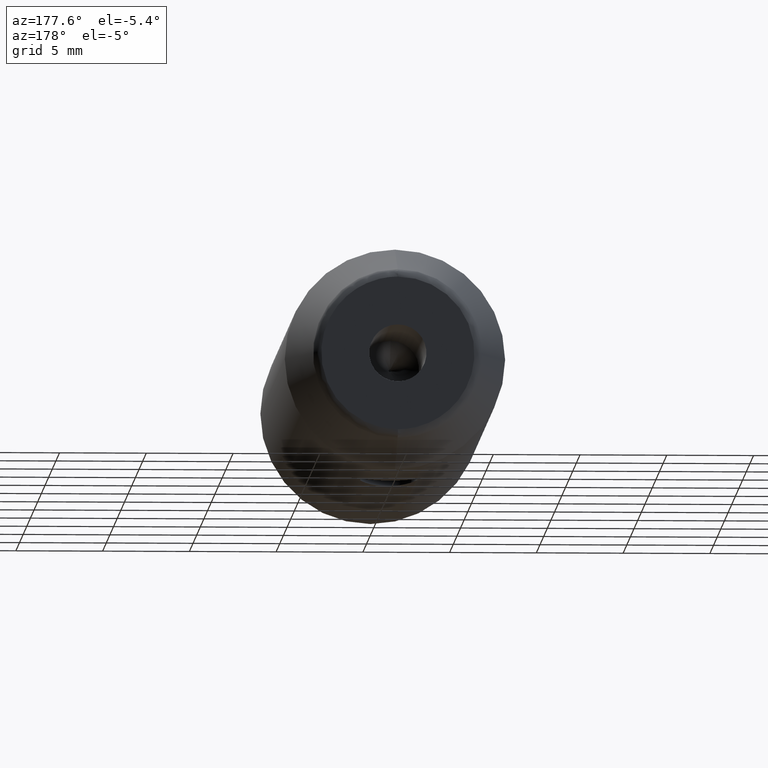
[diagram: clean part render]
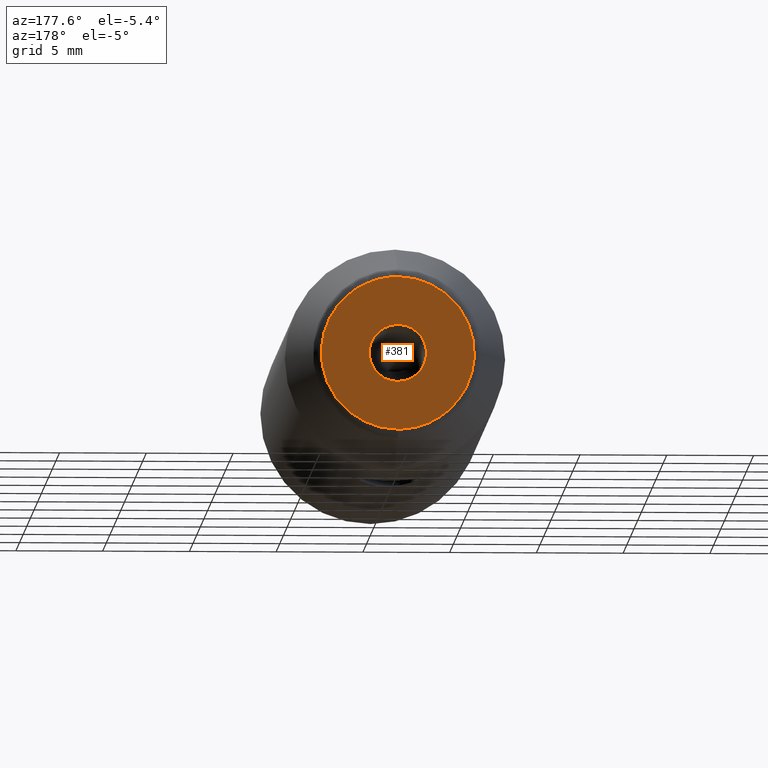
[diagram: same view with one face highlighted and labeled with its STEP entity id]
A machine part, auxiliary view. The second image highlights one B-rep face of the part: STEP entity #381.
In plain terms, the highlighted planar face has unit normal (0, 1, 0).
Its self-contained STEP definition (entity closure, byte-faithful):
#29 = CARTESIAN_POINT ( 'NONE',  ( 2.020667218593131000E-016, 38.10000000000000100, -1.649999999999998600 ) ) ;
#40 = VERTEX_POINT ( 'NONE', #219 ) ;
#42 = DIRECTION ( 'NONE',  ( 0.0000000000000000000, 1.000000000000000000, 0.0000000000000000000 ) ) ;
#53 = EDGE_LOOP ( 'NONE', ( #194, #459 ) ) ;
#77 = EDGE_CURVE ( 'NONE', #780, #167, #170, .T. ) ;
#79 = CIRCLE ( 'NONE', #206, 1.649999999999998600 ) ;
#112 = FACE_BOUND ( 'NONE', #688, .T. ) ;
#148 = ORIENTED_EDGE ( 'NONE', *, *, #636, .T. ) ;
#152 = DIRECTION ( 'NONE',  ( 0.0000000000000000000, 0.0000000000000000000, 1.000000000000000000 ) ) ;
#157 = CARTESIAN_POINT ( 'NONE',  ( -8.822967038573169800, 38.09999999999999400, -4.411483519286585800 ) ) ;
#164 = CARTESIAN_POINT ( 'NONE',  ( 0.0000000000000000000, 38.10000000000000100, 0.0000000000000000000 ) ) ;
#166 = ORIENTED_EDGE ( 'NONE', *, *, #77, .T. ) ;
#167 = VERTEX_POINT ( 'NONE', #515 ) ;
#170 = CIRCLE ( 'NONE', #286, 1.649999999999998600 ) ;
#194 = ORIENTED_EDGE ( 'NONE', *, *, #359, .F. ) ;
#206 = AXIS2_PLACEMENT_3D ( 'NONE', #271, #415, #758 ) ;
#213 = VERTEX_POINT ( 'NONE', #806 ) ;
#217 = CARTESIAN_POINT ( 'NONE',  ( -8.822967038573169800, 38.09999999999999400, 4.411483519286585800 ) ) ;
#219 = CARTESIAN_POINT ( 'NONE',  ( 0.0000000000000000000, 38.10000000000000100, 4.411483519286585800 ) ) ;
#271 = CARTESIAN_POINT ( 'NONE',  ( 0.0000000000000000000, 38.10000000000000100, 0.0000000000000000000 ) ) ;
#282 = CARTESIAN_POINT ( 'NONE',  ( 5.402509171385618700E-016, 38.10000000000000100, -4.411483519286585800 ) ) ;
#286 = AXIS2_PLACEMENT_3D ( 'NONE', #643, #699, #152 ) ;
#290 = DIRECTION ( 'NONE',  ( 0.0000000000000000000, -0.0000000000000000000, 1.000000000000000000 ) ) ;
#327 = EDGE_CURVE ( 'NONE', #213, #40, #652, .T. ) ;
#359 = EDGE_CURVE ( 'NONE', #40, #213, #494, .T. ) ;
#381 = ADVANCED_FACE ( 'NONE', ( #112, #490 ), #481, .T. ) ;
#415 = DIRECTION ( 'NONE',  ( -0.0000000000000000000, -1.000000000000000000, -0.0000000000000000000 ) ) ;
#459 = ORIENTED_EDGE ( 'NONE', *, *, #327, .F. ) ;
#467 = CARTESIAN_POINT ( 'NONE',  ( 0.0000000000000000000, 38.10000000000000100, 4.411483519286585800 ) ) ;
#481 = PLANE ( 'NONE',  #569 ) ;
#490 = FACE_OUTER_BOUND ( 'NONE', #53, .T. ) ;
#494 =( BOUNDED_CURVE ( )  B_SPLINE_CURVE ( 3, ( #467, #217, #157, #282 ),
 .UNSPECIFIED., .F., .F. ) 
 B_SPLINE_CURVE_WITH_KNOTS ( ( 4, 4 ),
 ( 0.0000000000000000000, 0.5000000000000000000 ),
 .UNSPECIFIED. ) 
 CURVE ( )  GEOMETRIC_REPRESENTATION_ITEM ( )  RATIONAL_B_SPLINE_CURVE ( ( 1.000000000000000000, 0.3333333333333333700, 0.3333333333333333700, 1.000000000000000000 ) ) 
 REPRESENTATION_ITEM ( '' )  );
#515 = CARTESIAN_POINT ( 'NONE',  ( 0.0000000000000000000, 38.10000000000000100, 1.649999999999998600 ) ) ;
#542 = CARTESIAN_POINT ( 'NONE',  ( 8.822967038573169800, 38.09999999999999400, -4.411483519286584900 ) ) ;
#569 = AXIS2_PLACEMENT_3D ( 'NONE', #164, #42, #290 ) ;
#588 = CARTESIAN_POINT ( 'NONE',  ( 5.402509171385618700E-016, 38.10000000000000100, -4.411483519286585800 ) ) ;
#636 = EDGE_CURVE ( 'NONE', #167, #780, #79, .T. ) ;
#643 = CARTESIAN_POINT ( 'NONE',  ( 0.0000000000000000000, 38.10000000000000100, 0.0000000000000000000 ) ) ;
#652 =( BOUNDED_CURVE ( )  B_SPLINE_CURVE ( 3, ( #588, #542, #709, #703 ),
 .UNSPECIFIED., .F., .F. ) 
 B_SPLINE_CURVE_WITH_KNOTS ( ( 4, 4 ),
 ( 0.5000000000000000000, 1.000000000000000000 ),
 .UNSPECIFIED. ) 
 CURVE ( )  GEOMETRIC_REPRESENTATION_ITEM ( )  RATIONAL_B_SPLINE_CURVE ( ( 1.000000000000000000, 0.3333333333333333700, 0.3333333333333333700, 1.000000000000000000 ) ) 
 REPRESENTATION_ITEM ( '' )  );
#688 = EDGE_LOOP ( 'NONE', ( #148, #166 ) ) ;
#699 = DIRECTION ( 'NONE',  ( -0.0000000000000000000, -1.000000000000000000, -0.0000000000000000000 ) ) ;
#703 = CARTESIAN_POINT ( 'NONE',  ( 0.0000000000000000000, 38.10000000000000100, 4.411483519286585800 ) ) ;
#709 = CARTESIAN_POINT ( 'NONE',  ( 8.822967038573169800, 38.09999999999999400, 4.411483519286585800 ) ) ;
#758 = DIRECTION ( 'NONE',  ( 0.0000000000000000000, 0.0000000000000000000, 1.000000000000000000 ) ) ;
#780 = VERTEX_POINT ( 'NONE', #29 ) ;
#806 = CARTESIAN_POINT ( 'NONE',  ( 5.402509171385618700E-016, 38.10000000000000100, -4.411483519286585800 ) ) ;